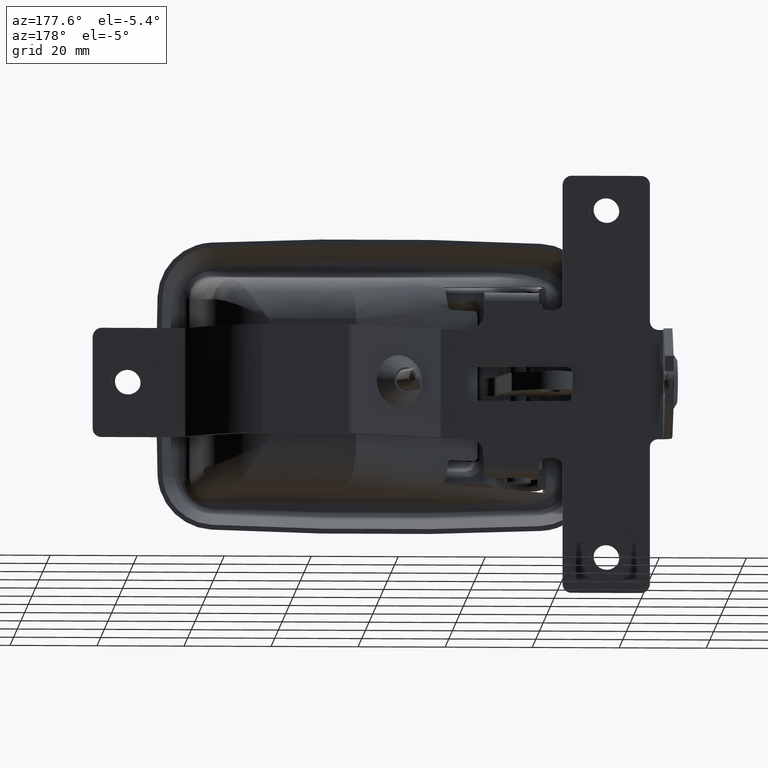
[diagram: clean part render]
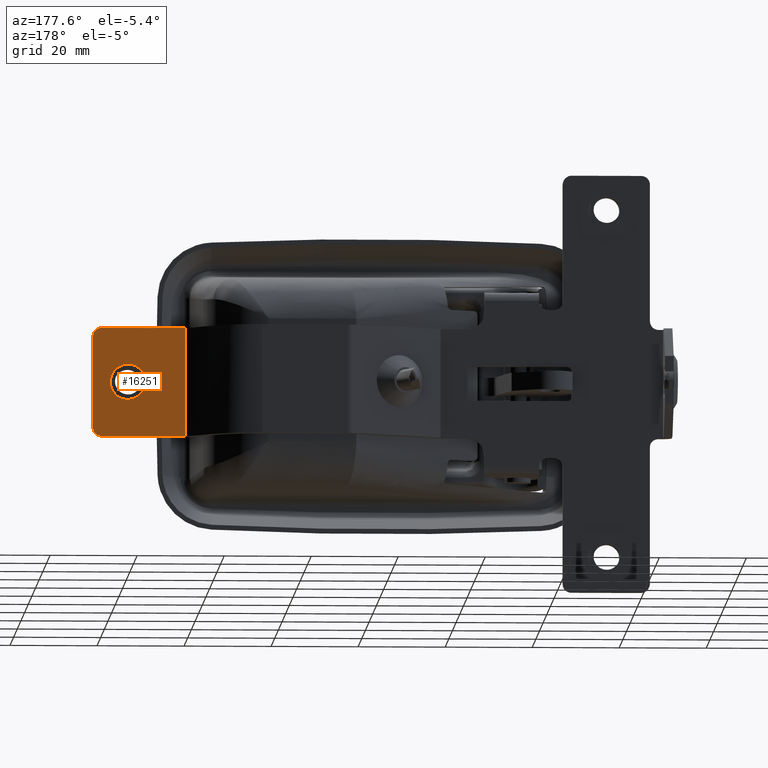
[diagram: same view with one face highlighted and labeled with its STEP entity id]
A machine part, auxiliary view. The second image highlights one B-rep face of the part: STEP entity #16251.
In plain terms, the highlighted face is a freeform B-spline surface patch.
Its self-contained STEP definition (entity closure, byte-faithful):
#12485=CARTESIAN_POINT('',(60.303636777363550,8.999999999999901,2.853001412725326));
#12486=VERTEX_POINT('',#12485);
#12492=CARTESIAN_POINT('',(61.499999999999559,8.999999999999901,-0.000001880087151));
#12493=VERTEX_POINT('',#12492);
#12494=CARTESIAN_POINT('',(60.303636777363550,8.999999999999901,2.853001412725326));
#12495=CARTESIAN_POINT('',(60.610643491067897,8.999999999999883,2.551649696085323));
#12496=CARTESIAN_POINT('',(60.986971635092573,8.999999999999920,2.037905917916706));
#12497=CARTESIAN_POINT('',(61.397540852766220,8.999999999999886,1.058670570685560));
#12498=CARTESIAN_POINT('',(61.500265771973453,8.999999999999913,0.430202405985819));
#12499=CARTESIAN_POINT('',(61.499999999999559,8.999999999999901,-0.000001880087151));
#12500=B_SPLINE_CURVE_WITH_KNOTS('',3,(#12494,#12495,#12496,#12497,#12498,#12499),.UNSPECIFIED.,.F.,.U.,(4,1,1,4),(0.000000042815572,1.290472173565199,1.886049108375155,3.176521239183731),.UNSPECIFIED.);
#12501=EDGE_CURVE('',#12486,#12493,#12500,.T.);
#12503=CARTESIAN_POINT('',(57.500000000000000,8.999999999999901,-4.0));
#12504=VERTEX_POINT('',#12503);
#12505=CARTESIAN_POINT('',(61.499999999999559,8.999999999999901,-0.000001880087151));
#12506=CARTESIAN_POINT('',(61.500025089273230,8.999999999999915,-0.261796492015790));
#12507=CARTESIAN_POINT('',(61.446822803415479,8.999999999999885,-0.801752726628598));
#12508=CARTESIAN_POINT('',(61.222700252764263,8.999999999999906,-1.524581508190604));
#12509=CARTESIAN_POINT('',(60.847927947745561,8.999999999999883,-2.236257991685017));
#12510=CARTESIAN_POINT('',(60.381167269916880,8.999999999999943,-2.812150721827794));
#12511=CARTESIAN_POINT('',(59.737319344990112,8.999999999999911,-3.347199671757720));
#12512=CARTESIAN_POINT('',(58.825048725532568,8.999999999999897,-3.842175875374509));
#12513=CARTESIAN_POINT('',(58.007324108135379,8.999999999999927,-4.000523363388414));
#12514=CARTESIAN_POINT('',(57.500000000000000,8.999999999999901,-4.0));
#12515=B_SPLINE_CURVE_WITH_KNOTS('',3,(#12505,#12506,#12507,#12508,#12509,#12510,#12511,#12512,#12513,#12514),.UNSPECIFIED.,.F.,.U.,(4,1,1,1,1,1,1,4),(0.000000170175650,0.785386598111679,1.619894396822017,2.258057567840679,3.190647627064580,3.828813036272953,4.761505614668076,6.283223671864080),.UNSPECIFIED.);
#12516=EDGE_CURVE('',#12493,#12504,#12515,.T.);
#12518=CARTESIAN_POINT('',(53.500000000000448,8.999999999999899,0.000001880087139));
#12519=VERTEX_POINT('',#12518);
#12520=CARTESIAN_POINT('',(57.500000000000000,8.999999999999901,-4.0));
#12521=CARTESIAN_POINT('',(57.107290442843329,8.999999999999915,-4.000139750286142));
#12522=CARTESIAN_POINT('',(56.354698603231022,8.999999999999863,-3.888290096747090));
#12523=CARTESIAN_POINT('',(55.423939303689899,8.999999999999972,-3.461960606298363));
#12524=CARTESIAN_POINT('',(54.633238516261898,8.999999999999840,-2.844890920647835));
#12525=CARTESIAN_POINT('',(54.069714293346642,8.999999999999908,-2.131830233445949));
#12526=CARTESIAN_POINT('',(53.617776016283237,8.999999999999920,-1.145214250927846));
#12527=CARTESIAN_POINT('',(53.499751032533588,8.999999999999892,-0.441819279864042));
#12528=CARTESIAN_POINT('',(53.500000000000448,8.999999999999899,0.000001880087139));
#12529=B_SPLINE_CURVE_WITH_KNOTS('',3,(#12520,#12521,#12522,#12523,#12524,#12525,#12526,#12527,#12528),.UNSPECIFIED.,.F.,.U.,(4,1,1,1,1,1,4),(0.000000169521146,1.178093629721764,2.258058328895578,3.043449067440692,4.172446586574129,4.957859770511249,6.283225791173756),.UNSPECIFIED.);
#12530=EDGE_CURVE('',#12504,#12519,#12529,.T.);
#12532=CARTESIAN_POINT('',(54.646997915659703,8.999999999999901,2.803637434896180));
#12533=VERTEX_POINT('',#12532);
#12534=CARTESIAN_POINT('',(53.500000000000448,8.999999999999899,0.000001880087139));
#12535=CARTESIAN_POINT('',(53.499864424065137,8.999999999999906,0.355995441169466));
#12536=CARTESIAN_POINT('',(53.573979408789768,8.999999999999904,0.906048437751953));
#12537=CARTESIAN_POINT('',(53.919952847367618,8.999999999999906,1.885064164197021));
#12538=CARTESIAN_POINT('',(54.306391415712874,8.999999999999908,2.457662171384734));
#12539=CARTESIAN_POINT('',(54.646997915659703,8.999999999999901,2.803637434896180));
#12540=B_SPLINE_CURVE_WITH_KNOTS('',3,(#12534,#12535,#12536,#12537,#12538,#12539),.UNSPECIFIED.,.F.,.U.,(4,1,1,4),(0.000000022678165,1.067949343841546,1.650466106443635,3.106760674571871),.UNSPECIFIED.);
#12541=EDGE_CURVE('',#12519,#12533,#12540,.T.);
#12577=CARTESIAN_POINT('',(57.500000000000000,8.999999999999901,4.0));
#12578=VERTEX_POINT('',#12577);
#12579=CARTESIAN_POINT('',(54.646997915659703,8.999999999999901,2.803637434896180));
#12580=CARTESIAN_POINT('',(54.948349533488823,8.999999999999899,3.110643848713025));
#12581=CARTESIAN_POINT('',(55.462093325363639,8.999999999999901,3.486971667132781));
#12582=CARTESIAN_POINT('',(56.441327797254843,8.999999999999911,3.897540901974715));
#12583=CARTESIAN_POINT('',(57.069796303314071,8.999999999999893,4.000265250446544));
#12584=CARTESIAN_POINT('',(57.500000000000000,8.999999999999901,4.0));
#12585=B_SPLINE_CURVE_WITH_KNOTS('',3,(#12579,#12580,#12581,#12582,#12583,#12584),.UNSPECIFIED.,.F.,.U.,(4,1,1,4),(0.000000042807352,1.290471562128100,1.886048214756503,3.176519734017774),.UNSPECIFIED.);
#12586=EDGE_CURVE('',#12533,#12578,#12585,.T.);
#12588=CARTESIAN_POINT('',(57.500000000000000,8.999999999999901,4.0));
#12589=CARTESIAN_POINT('',(57.855990928641774,8.999999999999895,4.000115681612997));
#12590=CARTESIAN_POINT('',(58.406050062130483,8.999999999999908,3.926036111140604));
#12591=CARTESIAN_POINT('',(59.385060908982588,8.999999999999892,3.580040138951242));
#12592=CARTESIAN_POINT('',(59.957661989511728,8.999999999999908,3.193610461152374));
#12593=CARTESIAN_POINT('',(60.303636777363550,8.999999999999901,2.853001412725326));
#12594=B_SPLINE_CURVE_WITH_KNOTS('',3,(#12588,#12589,#12590,#12591,#12592,#12593),.UNSPECIFIED.,.F.,.U.,(4,1,1,4),(0.000000022635337,1.067949865300729,1.650466912378078,3.106762191547468),.UNSPECIFIED.);
#12595=EDGE_CURVE('',#12578,#12486,#12594,.T.);
#15748=CARTESIAN_POINT('',(44.318000000000012,9.0,-12.500000000000000));
#15749=VERTEX_POINT('',#15748);
#15755=CARTESIAN_POINT('',(63.500000000000000,8.999999999999901,-12.500000000000000));
#15756=VERTEX_POINT('',#15755);
#15757=CARTESIAN_POINT('',(44.318000000000012,9.0,-12.500000000000000));
#15758=CARTESIAN_POINT('',(63.500000000000000,8.999999999999901,-12.500000000000000));
#15759=QUASI_UNIFORM_CURVE('',1,(#15757,#15758),.UNSPECIFIED.,.F.,.U.);
#15760=EDGE_CURVE('',#15749,#15756,#15759,.T.);
#15798=CARTESIAN_POINT('',(65.500000000000000,8.999999999999901,-10.500000000000000));
#15799=VERTEX_POINT('',#15798);
#15800=CARTESIAN_POINT('',(63.500000000000000,8.999999999999901,-12.500000000000000));
#15801=CARTESIAN_POINT('',(63.679971437971112,8.999999999999906,-12.500017276789309));
#15802=CARTESIAN_POINT('',(64.105480258630351,8.999999999999901,-12.442350826875661));
#15803=CARTESIAN_POINT('',(64.628836081923538,8.999999999999897,-12.186916329013160));
#15804=CARTESIAN_POINT('',(65.038823183999895,8.999999999999913,-11.805788102174290));
#15805=CARTESIAN_POINT('',(65.387032513937086,8.999999999999909,-11.284983621891080));
#15806=CARTESIAN_POINT('',(65.500586913217774,8.999999999999895,-10.811013943161070));
#15807=CARTESIAN_POINT('',(65.500000000000000,8.999999999999901,-10.500000000000000));
#15808=B_SPLINE_CURVE_WITH_KNOTS('',3,(#15800,#15801,#15802,#15803,#15804,#15805,#15806,#15807),.UNSPECIFIED.,.F.,.U.,(4,1,1,1,1,4),(0.000000287137543,0.539970855664617,1.276337533543879,1.718073068149657,2.208977835777680,3.141671488696523),.UNSPECIFIED.);
#15809=EDGE_CURVE('',#15756,#15799,#15808,.T.);
#15832=CARTESIAN_POINT('',(65.500000000000000,8.999999999999901,10.500000000000000));
#15833=VERTEX_POINT('',#15832);
#15834=CARTESIAN_POINT('',(65.500000000000000,8.999999999999901,-10.500000000000000));
#15835=CARTESIAN_POINT('',(65.500000000000000,8.999999999999901,10.500000000000000));
#15836=QUASI_UNIFORM_CURVE('',1,(#15834,#15835),.UNSPECIFIED.,.F.,.U.);
#15837=EDGE_CURVE('',#15799,#15833,#15836,.T.);
#15875=CARTESIAN_POINT('',(63.500000000000000,8.999999999999901,12.500000000000000));
#15876=VERTEX_POINT('',#15875);
#15877=CARTESIAN_POINT('',(65.500000000000000,8.999999999999901,10.500000000000000));
#15878=CARTESIAN_POINT('',(65.500025833281356,8.999999999999899,10.679973248777500));
#15879=CARTESIAN_POINT('',(65.442333749834759,8.999999999999899,11.105480383623931));
#15880=CARTESIAN_POINT('',(65.186908942461329,8.999999999999909,11.628813230485980));
#15881=CARTESIAN_POINT('',(64.772220023241175,8.999999999999902,12.075094205889290));
#15882=CARTESIAN_POINT('',(64.236160832629395,8.999999999999885,12.405455641077481));
#15883=CARTESIAN_POINT('',(63.761833142309513,8.999999999999920,12.500278821691911));
#15884=CARTESIAN_POINT('',(63.500000000000000,8.999999999999901,12.500000000000000));
#15885=B_SPLINE_CURVE_WITH_KNOTS('',3,(#15877,#15878,#15879,#15880,#15881,#15882,#15883,#15884),.UNSPECIFIED.,.F.,.U.,(4,1,1,1,1,4),(0.000000287143027,0.539970855669297,1.276337533546892,1.718073068151429,2.356253688307833,3.141671488696499),.UNSPECIFIED.);
#15886=EDGE_CURVE('',#15833,#15876,#15885,.T.);
#15915=CARTESIAN_POINT('',(44.318000000000012,9.0,12.500000000000000));
#15916=VERTEX_POINT('',#15915);
#15917=CARTESIAN_POINT('',(63.500000000000000,8.999999999999901,12.500000000000000));
#15918=CARTESIAN_POINT('',(44.318000000000012,9.0,12.500000000000000));
#15919=QUASI_UNIFORM_CURVE('',1,(#15917,#15918),.UNSPECIFIED.,.F.,.U.);
#15920=EDGE_CURVE('',#15876,#15916,#15919,.T.);
#16163=CARTESIAN_POINT('',(44.318000000000012,9.0,-12.500000000000000));
#16164=CARTESIAN_POINT('',(44.318000000000012,9.0,12.500000000000000));
#16165=QUASI_UNIFORM_CURVE('',1,(#16163,#16164),.UNSPECIFIED.,.F.,.U.);
#16166=EDGE_CURVE('',#15749,#15916,#16165,.T.);
#16230=CARTESIAN_POINT('',(43.259959936420657,9.0,-13.748749951545150));
#16231=CARTESIAN_POINT('',(43.259959936420657,9.0,13.748750622097401));
#16232=CARTESIAN_POINT('',(66.558041389252196,9.0,-13.748749951545150));
#16233=CARTESIAN_POINT('',(66.558041389252196,9.0,13.748750622097401));
#16234=B_SPLINE_SURFACE_WITH_KNOTS('',1,1,((#16230,#16232),(#16231,#16233)),.UNSPECIFIED.,.F.,.F.,.U.,(2,2),(2,2),(0.041708334948495,0.958291687403247),(0.041708366239443,0.958291685914621),.UNSPECIFIED.);
#16235=ORIENTED_EDGE('',*,*,#15920,.F.);
#16236=ORIENTED_EDGE('',*,*,#15886,.F.);
#16237=ORIENTED_EDGE('',*,*,#15837,.F.);
#16238=ORIENTED_EDGE('',*,*,#15809,.F.);
#16239=ORIENTED_EDGE('',*,*,#15760,.F.);
#16240=ORIENTED_EDGE('',*,*,#16166,.T.);
#16241=EDGE_LOOP('',(#16235,#16236,#16237,#16238,#16239,#16240));
#16242=FACE_OUTER_BOUND('',#16241,.T.);
#16243=ORIENTED_EDGE('',*,*,#12516,.F.);
#16244=ORIENTED_EDGE('',*,*,#12501,.F.);
#16245=ORIENTED_EDGE('',*,*,#12595,.F.);
#16246=ORIENTED_EDGE('',*,*,#12586,.F.);
#16247=ORIENTED_EDGE('',*,*,#12541,.F.);
#16248=ORIENTED_EDGE('',*,*,#12530,.F.);
#16249=EDGE_LOOP('',(#16243,#16244,#16245,#16246,#16247,#16248));
#16250=FACE_BOUND('',#16249,.T.);
#16251=ADVANCED_FACE('',(#16242,#16250),#16234,.T.);